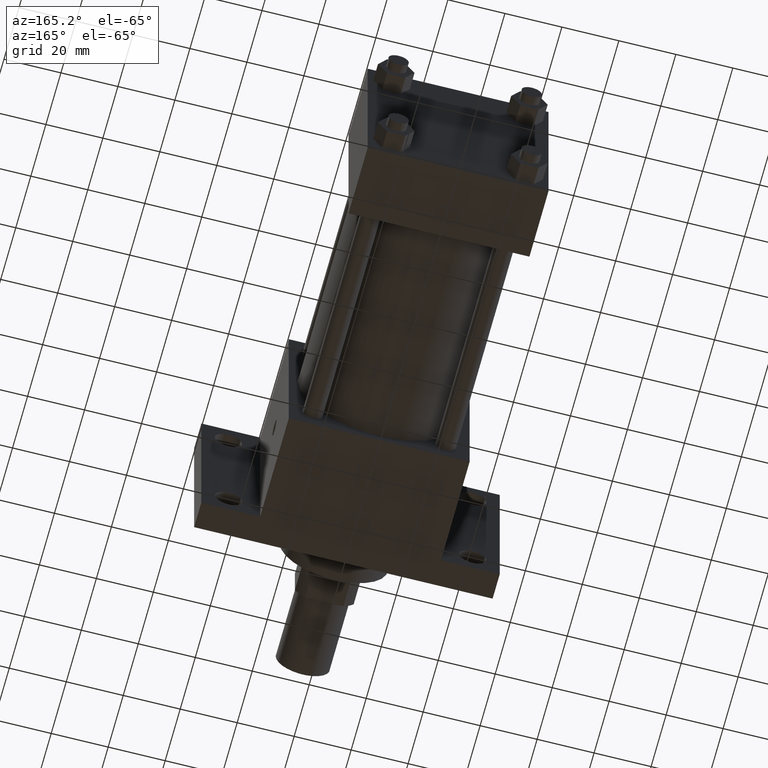
[diagram: clean part render]
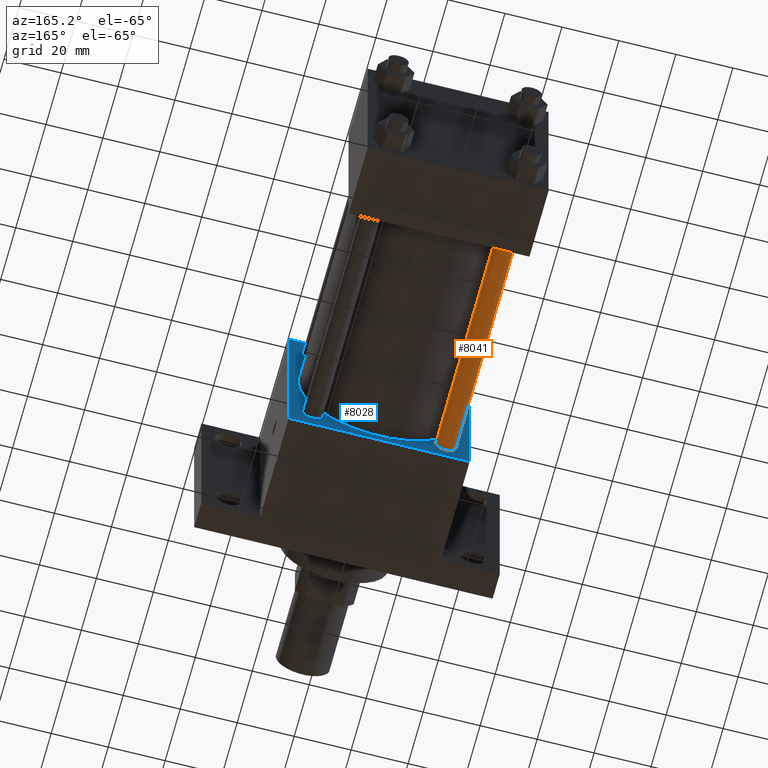
[diagram: same view with the hole feature highlighted: cylindrical wall and planar end face, labeled with their STEP entity ids]
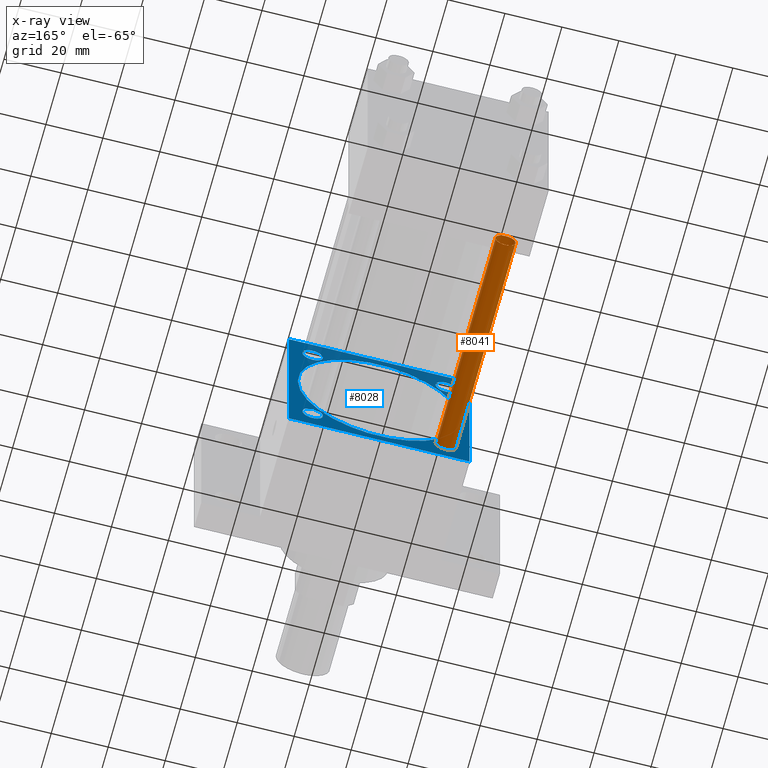
[diagram: x-ray of the same camera — body ghosted, the hole faces saturated]
A machine part, auxiliary view. The highlighted faces form one hole feature of diameter 7.1374 mm: the cylindrical wall (entity #8041, orange) and its adjacent planar end face (entity #8028, blue) — they share a circular edge in the B-rep.
The next image is the same camera in x-ray (body ghosted, the hole faces saturated) — the bore reads through the body.
Wall:
#880=EDGE_CURVE('',#886,#886,#881,.T.);
#881=CIRCLE('',#882,3.568700000E+000);
#882=AXIS2_PLACEMENT_3D('',#883,#884,#885);
#883=CARTESIAN_POINT('',(-2.336800000E+001,7.302500000E+001,-2.336800000E+001));
#884=DIRECTION('',(0.0E+000,1.0E+000,0.0E+000));
#885=DIRECTION('',(1.0E+000,0.0E+000,0.0E+000));
#886=VERTEX_POINT('',#887);
#887=CARTESIAN_POINT('',(-1.979930000E+001,7.302500000E+001,-2.336800000E+001));
#1108=FACE_OUTER_BOUND('',#1110,.T.);
#1109=FACE_BOUND('',#1111,.T.);
#1110=EDGE_LOOP('',(#1112));
#1111=EDGE_LOOP('',(#1113));
#1112=ORIENTED_EDGE('',*,*,#1157,.F.);
#1113=ORIENTED_EDGE('',*,*,#880,.T.);
#1114=CYLINDRICAL_SURFACE('',#1115,3.568700000E+000);
#1115=AXIS2_PLACEMENT_3D('',#1116,#1117,#1118);
#1116=CARTESIAN_POINT('',(-2.336800000E+001,1.524000000E+002,-2.336800000E+001));
#1117=DIRECTION('',(0.0E+000,-1.0E+000,0.0E+000));
#1118=DIRECTION('',(0.0E+000,0.0E+000,-1.0E+000));
#1157=EDGE_CURVE('',#1163,#1163,#1158,.T.);
#1158=CIRCLE('',#1159,3.568700000E+000);
#1159=AXIS2_PLACEMENT_3D('',#1160,#1161,#1162);
#1160=CARTESIAN_POINT('',(-2.336800000E+001,1.524000000E+002,-2.336800000E+001));
#1161=DIRECTION('',(0.0E+000,1.0E+000,0.0E+000));
#1162=DIRECTION('',(1.0E+000,0.0E+000,0.0E+000));
#1163=VERTEX_POINT('',#1164);
#1164=CARTESIAN_POINT('',(-1.979930000E+001,1.524000000E+002,-2.336800000E+001));
#8041=ADVANCED_FACE('',(#1108,#1109),#1114,.T.);
End face:
#557=VERTEX_POINT('',#558);
#558=CARTESIAN_POINT('',(-3.175000000E+001,7.302500000E+001,-3.175000000E+001));
#559=EDGE_CURVE('',#557,#564,#560,.T.);
#560=LINE('',#561,#562);
#561=CARTESIAN_POINT('',(-3.175000000E+001,7.302500000E+001,-3.175000000E+001));
#562=VECTOR('',#563,1.0E+000);
#563=DIRECTION('',(1.0E+000,0.0E+000,0.0E+000));
#564=VERTEX_POINT('',#565);
#565=CARTESIAN_POINT('',(3.175000000E+001,7.302500000E+001,-3.175000000E+001));
#639=VERTEX_POINT('',#640);
#640=CARTESIAN_POINT('',(3.175000000E+001,7.302500000E+001,3.175000000E+001));
#641=EDGE_CURVE('',#639,#646,#642,.T.);
#642=LINE('',#643,#644);
#643=CARTESIAN_POINT('',(3.175000000E+001,7.302500000E+001,3.175000000E+001));
#644=VECTOR('',#645,1.0E+000);
#645=DIRECTION('',(-1.0E+000,0.0E+000,0.0E+000));
#646=VERTEX_POINT('',#647);
#647=CARTESIAN_POINT('',(-3.175000000E+001,7.302500000E+001,3.175000000E+001));
#826=FACE_OUTER_BOUND('',#832,.T.);
#827=FACE_BOUND('',#833,.T.);
#828=FACE_BOUND('',#834,.T.);
#829=FACE_BOUND('',#835,.T.);
#830=FACE_BOUND('',#836,.T.);
#831=FACE_BOUND('',#837,.T.);
#832=EDGE_LOOP('',(#838));
#833=EDGE_LOOP('',(#847,#848,#849,#850));
#834=EDGE_LOOP('',(#861));
#835=EDGE_LOOP('',(#870));
#836=EDGE_LOOP('',(#879));
#837=EDGE_LOOP('',(#888));
#838=ORIENTED_EDGE('',*,*,#839,.F.);
#839=EDGE_CURVE('',#845,#845,#840,.T.);
#840=CIRCLE('',#841,2.857500000E+001);
#841=AXIS2_PLACEMENT_3D('',#842,#843,#844);
#842=CARTESIAN_POINT('',(0.000000000E+000,7.302500000E+001,0.000000000E+000));
#843=DIRECTION('',(0.0E+000,1.0E+000,0.0E+000));
#844=DIRECTION('',(1.0E+000,0.0E+000,0.0E+000));
#845=VERTEX_POINT('',#846);
#846=CARTESIAN_POINT('',(2.857500000E+001,7.302500000E+001,0.000000000E+000));
#847=ORIENTED_EDGE('',*,*,#559,.F.);
#848=ORIENTED_EDGE('',*,*,#851,.F.);
#849=ORIENTED_EDGE('',*,*,#641,.F.);
#850=ORIENTED_EDGE('',*,*,#856,.F.);
#851=EDGE_CURVE('',#646,#557,#852,.T.);
#852=LINE('',#853,#854);
#853=CARTESIAN_POINT('',(-3.175000000E+001,7.302500000E+001,3.175000000E+001));
#854=VECTOR('',#855,1.0E+000);
#855=DIRECTION('',(0.0E+000,0.0E+000,-1.0E+000));
#856=EDGE_CURVE('',#564,#639,#857,.T.);
#857=LINE('',#858,#859);
#858=CARTESIAN_POINT('',(3.175000000E+001,7.302500000E+001,-3.175000000E+001));
#859=VECTOR('',#860,1.0E+000);
#860=DIRECTION('',(0.0E+000,0.0E+000,1.0E+000));
#861=ORIENTED_EDGE('',*,*,#862,.F.);
#862=EDGE_CURVE('',#868,#868,#863,.T.);
#863=CIRCLE('',#864,3.568700000E+000);
#864=AXIS2_PLACEMENT_3D('',#865,#866,#867);
#865=CARTESIAN_POINT('',(-2.336800000E+001,7.302500000E+001,2.336800000E+001));
#866=DIRECTION('',(0.0E+000,1.0E+000,0.0E+000));
#867=DIRECTION('',(1.0E+000,0.0E+000,0.0E+000));
#868=VERTEX_POINT('',#869);
#869=CARTESIAN_POINT('',(-1.979930000E+001,7.302500000E+001,2.336800000E+001));
#870=ORIENTED_EDGE('',*,*,#871,.F.);
#871=EDGE_CURVE('',#877,#877,#872,.T.);
#872=CIRCLE('',#873,3.568700000E+000);
#873=AXIS2_PLACEMENT_3D('',#874,#875,#876);
#874=CARTESIAN_POINT('',(2.336800000E+001,7.302500000E+001,-2.336800000E+001));
#875=DIRECTION('',(0.0E+000,1.0E+000,0.0E+000));
#876=DIRECTION('',(1.0E+000,0.0E+000,0.0E+000));
#877=VERTEX_POINT('',#878);
#878=CARTESIAN_POINT('',(2.693670000E+001,7.302500000E+001,-2.336800000E+001));
#879=ORIENTED_EDGE('',*,*,#880,.F.);
#880=EDGE_CURVE('',#886,#886,#881,.T.);
#881=CIRCLE('',#882,3.568700000E+000);
#882=AXIS2_PLACEMENT_3D('',#883,#884,#885);
#883=CARTESIAN_POINT('',(-2.336800000E+001,7.302500000E+001,-2.336800000E+001));
#884=DIRECTION('',(0.0E+000,1.0E+000,0.0E+000));
#885=DIRECTION('',(1.0E+000,0.0E+000,0.0E+000));
#886=VERTEX_POINT('',#887);
#887=CARTESIAN_POINT('',(-1.979930000E+001,7.302500000E+001,-2.336800000E+001));
#888=ORIENTED_EDGE('',*,*,#889,.T.);
#889=EDGE_CURVE('',#895,#895,#890,.T.);
#890=CIRCLE('',#891,3.568700000E+000);
#891=AXIS2_PLACEMENT_3D('',#892,#893,#894);
#892=CARTESIAN_POINT('',(2.336800000E+001,7.302500000E+001,2.336800000E+001));
#893=DIRECTION('',(0.0E+000,-1.0E+000,0.0E+000));
#894=DIRECTION('',(-1.0E+000,0.0E+000,0.0E+000));
#895=VERTEX_POINT('',#896);
#896=CARTESIAN_POINT('',(1.979930000E+001,7.302500000E+001,2.336800000E+001));
#897=PLANE('',#898);
#898=AXIS2_PLACEMENT_3D('',#899,#900,#901);
#899=CARTESIAN_POINT('',(-3.175000000E+001,7.302500000E+001,-3.175000000E+001));
#900=DIRECTION('',(0.0E+000,1.0E+000,0.0E+000));
#901=DIRECTION('',(0.0E+000,0.0E+000,1.0E+000));
#8028=ADVANCED_FACE('',(#826,#827,#828,#829,#830,#831),#897,.T.);